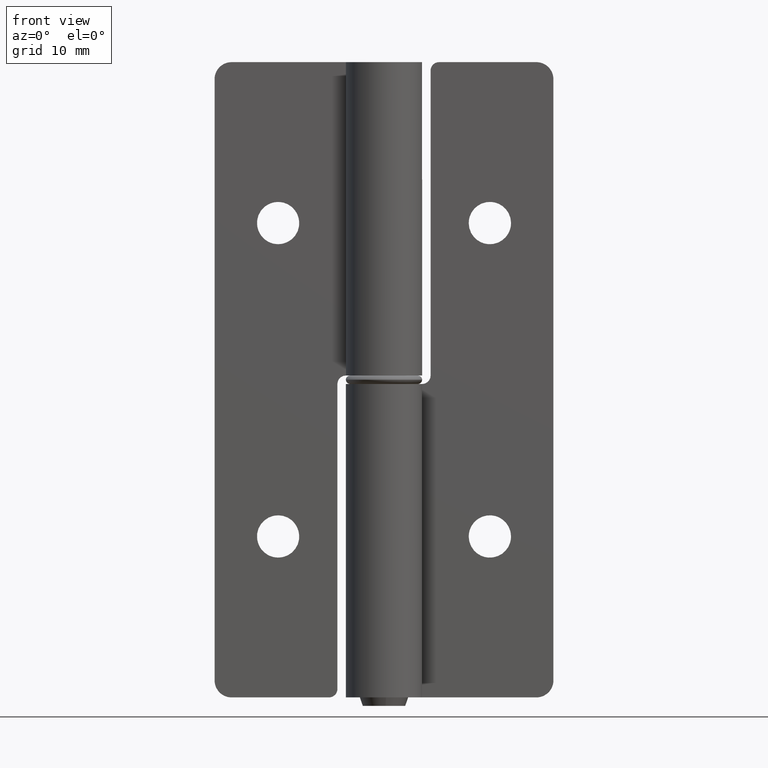
[diagram: clean part render]
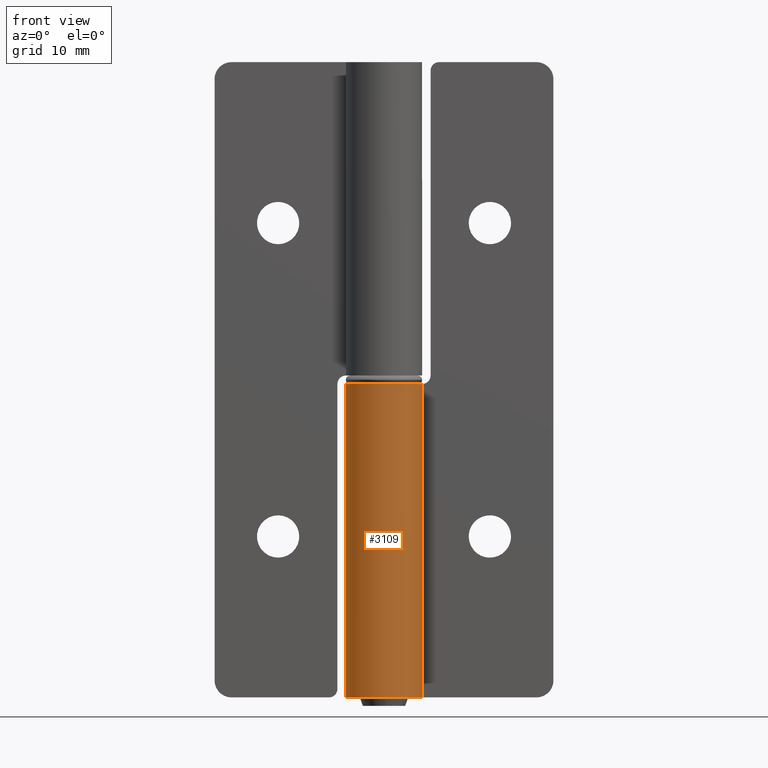
[diagram: same view with one face highlighted and labeled with its STEP entity id]
A machine part, front view. The second image highlights one B-rep face of the part: STEP entity #3109.
In plain terms, the highlighted face is a freeform B-spline surface patch.
Its self-contained STEP definition (entity closure, byte-faithful):
#2522=CARTESIAN_POINT('',(4.031128874172635,1.999999999986875,37.0));
#2523=VERTEX_POINT('',#2522);
#2531=CARTESIAN_POINT('',(4.031128874172681,1.999999999986900,0.0));
#2532=VERTEX_POINT('',#2531);
#2533=CARTESIAN_POINT('',(4.031128874172635,1.999999999986875,37.0));
#2534=CARTESIAN_POINT('',(4.031128874172681,1.999999999986900,0.0));
#2535=QUASI_UNIFORM_CURVE('',1,(#2533,#2534),.UNSPECIFIED.,.F.,.U.);
#2536=EDGE_CURVE('',#2523,#2532,#2535,.T.);
#2949=CARTESIAN_POINT('',(1.685407E-011,4.499999999999915,37.0));
#2950=VERTEX_POINT('',#2949);
#2956=CARTESIAN_POINT('',(1.685407E-011,4.499999999999915,37.0));
#2957=CARTESIAN_POINT('',(-0.424351490447958,4.500157255506352,36.999999999999993));
#2958=CARTESIAN_POINT('',(-1.212319005801885,4.387694516865119,36.999999999999993));
#2959=CARTESIAN_POINT('',(-2.138760354355870,3.991476667054740,37.000000000000078));
#2960=CARTESIAN_POINT('',(-2.855397193228992,3.505223569878467,36.999999999999780));
#2961=CARTESIAN_POINT('',(-3.405704806614336,2.979231254269460,37.000000000000533));
#2962=CARTESIAN_POINT('',(-3.949534827653351,2.227385675905002,36.999999999999687));
#2963=CARTESIAN_POINT('',(-4.287471284192635,1.458192123609068,36.999999999999673));
#2964=CARTESIAN_POINT('',(-4.461261451379904,0.687775660878057,37.000000000000369));
#2965=CARTESIAN_POINT('',(-4.519733500493826,0.006619070559757,36.999999999999723));
#2966=CARTESIAN_POINT('',(-4.453918897779509,-0.858331876148137,37.000000000000348));
#2967=CARTESIAN_POINT('',(-4.184512432342338,-1.750381331488399,36.999999999999552));
#2968=CARTESIAN_POINT('',(-3.678839723210076,-2.653293252392747,37.000000000000433));
#2969=CARTESIAN_POINT('',(-3.089505584047202,-3.314858677076208,36.999999999999382));
#2970=CARTESIAN_POINT('',(-2.297658513373529,-3.905635562155448,36.999999999999993));
#2971=CARTESIAN_POINT('',(-1.371223532715503,-4.340688283988251,37.000000000000043));
#2972=CARTESIAN_POINT('',(-0.332108593724513,-4.525697648005134,37.000000000000092));
#2973=CARTESIAN_POINT('',(0.640385412907279,-4.480789373794866,36.999999999999943));
#2974=CARTESIAN_POINT('',(1.588997150261366,-4.255839148736371,37.000000000000057));
#2975=CARTESIAN_POINT('',(2.448003516942488,-3.819123887526903,37.000000000000007));
#2976=CARTESIAN_POINT('',(3.164662288723326,-3.230336761050312,36.999999999999993));
#2977=CARTESIAN_POINT('',(3.651527710840375,-2.665574148175824,36.999999999999972));
#2978=CARTESIAN_POINT('',(4.100510596513709,-1.924659013565739,37.000000000000327));
#2979=CARTESIAN_POINT('',(4.417877956899488,-1.049120123847636,36.999999999999027));
#2980=CARTESIAN_POINT('',(4.519596868991568,-0.170549268309037,37.000000000001840));
#2981=CARTESIAN_POINT('',(4.474204717120498,0.632893863864476,36.999999999995353));
#2982=CARTESIAN_POINT('',(4.326141240076194,1.317405813711117,37.000000000012193));
#2983=CARTESIAN_POINT('',(4.132163697661281,1.796374846821495,36.999999999984247));
#2984=CARTESIAN_POINT('',(4.031128874172635,1.999999999986875,37.0));
#2985=B_SPLINE_CURVE_WITH_KNOTS('',3,(#2956,#2957,#2958,#2959,#2960,#2961,#2962,#2963,#2964,#2965,#2966,#2967,#2968,#2969,#2970,#2971,#2972,#2973,#2974,#2975,#2976,#2977,#2978,#2979,#2980,#2981,#2982,#2983,#2984),.UNSPECIFIED.,.F.,.U.,(4,1,1,1,1,1,1,1,1,1,1,1,1,1,1,1,1,1,1,1,1,1,1,1,1,1,4),(0.000000371166131,1.273004819666372,2.364197980852499,3.000727310040716,3.864585485711618,4.637503108801795,5.774163611754123,6.365131888582202,7.001684660568895,7.820052106556197,8.956709434514231,9.775103765683097,10.911745545643379,11.593747744761870,12.730338609162979,13.957910230492461,14.730828794761960,15.640157920812401,16.867733528434041,17.595141482982079,18.413515764590489,19.095503832442830,20.186685836343759,21.186930951418208,21.732520613681181,22.596398303763319,23.278342379577872),.UNSPECIFIED.);
#2986=EDGE_CURVE('',#2950,#2523,#2985,.T.);
#3014=CARTESIAN_POINT('',(3.117779E-011,4.500000000000060,0.0));
#3015=VERTEX_POINT('',#3014);
#3025=CARTESIAN_POINT('',(4.031128874172681,1.999999999986900,0.0));
#3026=CARTESIAN_POINT('',(4.172613147190377,1.714932222404490,0.0));
#3027=CARTESIAN_POINT('',(4.400028843069237,1.100308726227541,0.0));
#3028=CARTESIAN_POINT('',(4.521042998349974,0.224206737452147,0.0));
#3029=CARTESIAN_POINT('',(4.476508654905952,-0.671440477483918,0.0));
#3030=CARTESIAN_POINT('',(4.255016294464018,-1.590587800016604,0.0));
#3031=CARTESIAN_POINT('',(3.801706213909660,-2.474043956902369,0.0));
#3032=CARTESIAN_POINT('',(3.180788980014256,-3.224406765522224,0.0));
#3033=CARTESIAN_POINT('',(2.530370719977322,-3.753119817908712,0.0));
#3034=CARTESIAN_POINT('',(1.714492827824008,-4.194260187580346,0.0));
#3035=CARTESIAN_POINT('',(0.925381930165538,-4.432797532103734,0.0));
#3036=CARTESIAN_POINT('',(0.018451555486388,-4.525257687471567,0.0));
#3037=CARTESIAN_POINT('',(-0.756731938002625,-4.462891277702098,0.0));
#3038=CARTESIAN_POINT('',(-1.563004315815620,-4.242168028116530,0.0));
#3039=CARTESIAN_POINT('',(-2.239557574643931,-3.928688729699944,0.0));
#3040=CARTESIAN_POINT('',(-3.002163054056985,-3.400784960549683,0.0));
#3041=CARTESIAN_POINT('',(-3.688792863907628,-2.660691449082296,0.0));
#3042=CARTESIAN_POINT('',(-4.189155933982153,-1.734387109898949,0.0));
#3043=CARTESIAN_POINT('',(-4.440112795887534,-0.871863015095184,0.0));
#3044=CARTESIAN_POINT('',(-4.515479962515542,-0.130338246182673,0.0));
#3045=CARTESIAN_POINT('',(-4.478118800085151,0.612927876076091,0.0));
#3046=CARTESIAN_POINT('',(-4.337238349188691,1.267821344314958,0.0));
#3047=CARTESIAN_POINT('',(-4.031028318259593,2.061027817689249,0.0));
#3048=CARTESIAN_POINT('',(-3.596084990510498,2.761942436998814,0.0));
#3049=CARTESIAN_POINT('',(-3.036166185616300,3.342008205098959,0.0));
#3050=CARTESIAN_POINT('',(-2.389601094542618,3.845800669865519,0.0));
#3051=CARTESIAN_POINT('',(-1.682680282885104,4.209208396148617,0.0));
#3052=CARTESIAN_POINT('',(-0.803196744870721,4.450353933211318,0.0));
#3053=CARTESIAN_POINT('',(-0.287944913626010,4.500034097611301,0.0));
#3054=CARTESIAN_POINT('',(3.117779E-011,4.500000000000060,0.0));
#3055=B_SPLINE_CURVE_WITH_KNOTS('',3,(#3025,#3026,#3027,#3028,#3029,#3030,#3031,#3032,#3033,#3034,#3035,#3036,#3037,#3038,#3039,#3040,#3041,#3042,#3043,#3044,#3045,#3046,#3047,#3048,#3049,#3050,#3051,#3052,#3053,#3054),.UNSPECIFIED.,.F.,.U.,(4,1,1,1,1,1,1,1,1,1,1,1,1,1,1,1,1,1,1,1,1,1,1,1,1,1,1,4),(0.000000371053911,0.954741405396295,1.955006535042674,2.637000940491358,3.637252559667633,4.773911836596181,5.592288243841868,6.547027114624889,7.274455920225016,8.365649352457830,9.002177872279180,10.002435433711710,10.684423194882690,11.502785239569841,12.230196037184070,13.457771646367339,14.503498859819549,15.367345887089209,16.140261903958582,16.731320740186870,17.595141482965630,18.140701391329539,19.277356710378161,20.050285177411538,20.550413858786829,21.732520613687321,22.414509115080481,23.278342379592502),.UNSPECIFIED.);
#3056=EDGE_CURVE('',#2532,#3015,#3055,.T.);
#3077=CARTESIAN_POINT('',(0.117796267402288,4.498457962390065,37.925000000000011));
#3078=CARTESIAN_POINT('',(0.117796267402288,4.498457962390065,-0.948124999999997));
#3079=CARTESIAN_POINT('',(-5.275037923991355,4.639674295561536,37.925000000000018));
#3080=CARTESIAN_POINT('',(-5.275037923991355,4.639674295561536,-0.948124999999997));
#3081=CARTESIAN_POINT('',(-4.446626447953434,-0.691023322479409,37.925000000000011));
#3082=CARTESIAN_POINT('',(-4.446626447953434,-0.691023322479409,-0.948124999999997));
#3083=CARTESIAN_POINT('',(-3.618214971915511,-6.021720940520355,37.925000000000018));
#3084=CARTESIAN_POINT('',(-3.618214971915511,-6.021720940520355,-0.948124999999997));
#3085=CARTESIAN_POINT('',(1.477427288477854,-4.250553917704057,37.925000000000011));
#3086=CARTESIAN_POINT('',(1.477427288477854,-4.250553917704057,-0.948124999999997));
#3087=CARTESIAN_POINT('',(6.573069548871217,-2.479386894887757,37.925000000000018));
#3088=CARTESIAN_POINT('',(6.573069548871217,-2.479386894887757,-0.948124999999997));
#3089=CARTESIAN_POINT('',(3.916600631746356,2.215906020465682,37.925000000000011));
#3090=CARTESIAN_POINT('',(3.916600631746356,2.215906020465682,-0.948124999999997));
#3098=(BOUNDED_SURFACE()B_SPLINE_SURFACE(1,2,((#3077,#3079,#3081,#3083,#3085,#3087,#3089),(#3078,#3080,#3082,#3084,#3086,#3088,#3090)),.UNSPECIFIED.,.F.,.F.,.U.)B_SPLINE_SURFACE_WITH_KNOTS((2,2),(3,2,2,3),(0.0,38.873125000000009),(0.0,8.425432079301356,16.850864158602711,25.276296237904070),.UNSPECIFIED.)GEOMETRIC_REPRESENTATION_ITEM()RATIONAL_B_SPLINE_SURFACE(((1.0,0.640556560368615,1.0,0.640556560368615,1.0,0.640556560368615,1.0),(1.0,0.640556560368615,1.0,0.640556560368615,1.0,0.640556560368615,1.0)))REPRESENTATION_ITEM('')SURFACE());
#3099=ORIENTED_EDGE('',*,*,#2536,.F.);
#3100=ORIENTED_EDGE('',*,*,#2986,.F.);
#3101=CARTESIAN_POINT('',(1.685407E-011,4.499999999999915,37.0));
#3102=CARTESIAN_POINT('',(3.117779E-011,4.500000000000060,0.0));
#3103=QUASI_UNIFORM_CURVE('',1,(#3101,#3102),.UNSPECIFIED.,.F.,.U.);
#3104=EDGE_CURVE('',#2950,#3015,#3103,.T.);
#3105=ORIENTED_EDGE('',*,*,#3104,.T.);
#3106=ORIENTED_EDGE('',*,*,#3056,.F.);
#3107=EDGE_LOOP('',(#3099,#3100,#3105,#3106));
#3108=FACE_OUTER_BOUND('',#3107,.T.);
#3109=ADVANCED_FACE('',(#3108),#3098,.T.);